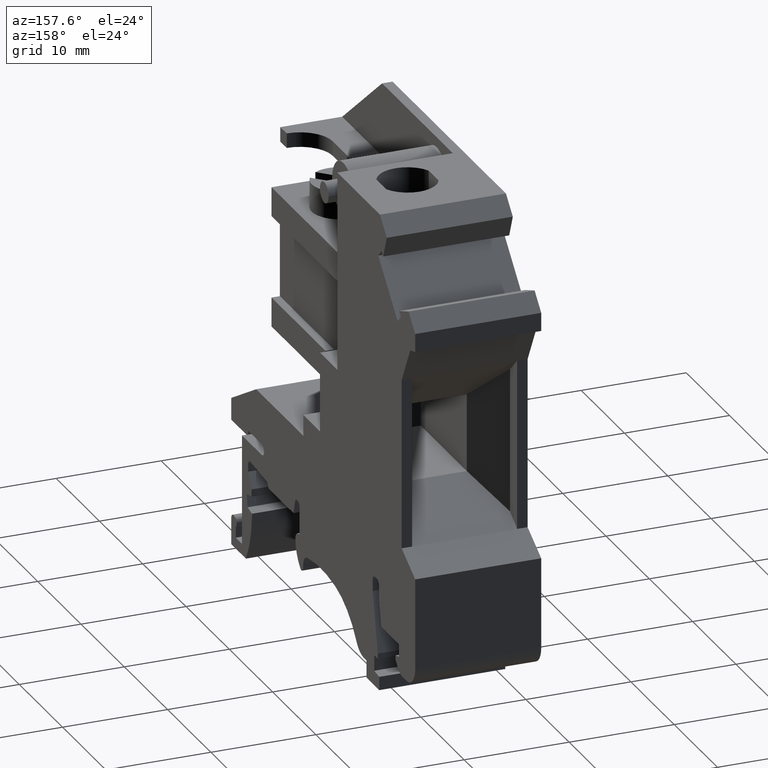
[diagram: clean part render]
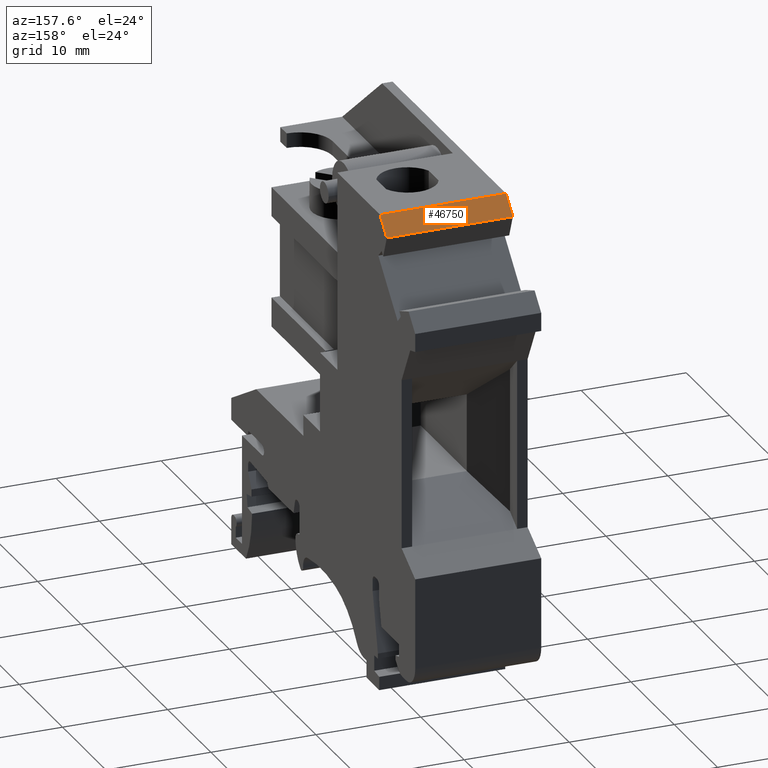
[diagram: same view with one face highlighted and labeled with its STEP entity id]
A machine part, auxiliary view. The second image highlights one B-rep face of the part: STEP entity #46750.
In plain terms, the highlighted planar face has unit normal (0, 0.7071, 0.7071).
Its self-contained STEP definition (entity closure, byte-faithful):
#29540=CARTESIAN_POINT('',(-131.049315429515,295.437846858691,
7.21644966006352E-16));
#29550=VERTEX_POINT('',#29540);
#29580=CARTESIAN_POINT('',(77.5635819667818,86.824949462381,
7.21644966006352E-16));
#29590=DIRECTION('',(0.707106781186526,-0.707106781186569,0.));
#29600=VECTOR('',#29590,1.);
#29610=LINE('',#29580,#29600);
#29620=CARTESIAN_POINT('',(-129.466371176741,293.854902605917,
7.21644966006352E-16));
#29630=VERTEX_POINT('',#29620);
#29640=EDGE_CURVE('',#29550,#29630,#29610,.T.);
#46280=CARTESIAN_POINT('',(-129.466371176741,293.854902605916,-12.5));
#46290=DIRECTION('',(0.,0.,-1.));
#46300=VECTOR('',#46290,1.);
#46310=LINE('',#46280,#46300);
#46320=CARTESIAN_POINT('',(-129.466371176741,293.854902605917,-12.));
#46330=VERTEX_POINT('',#46320);
#46340=EDGE_CURVE('',#29630,#46330,#46310,.T.);
#46520=CARTESIAN_POINT('',(-130.902868820108,295.291400249284,-12.5));
#46530=DIRECTION('',(0.707106781186569,0.707106781186526,0.));
#46540=DIRECTION('',(0.707106781186526,-0.707106781186569,0.));
#46550=AXIS2_PLACEMENT_3D('',#46520,#46530,#46540);
#46560=PLANE('',#46550);
#46570=ORIENTED_EDGE('',*,*,#46340,.T.);
#46580=ORIENTED_EDGE('',*,*,#29640,.T.);
#46590=CARTESIAN_POINT('',(-131.049315429515,295.437846858691,-12.5));
#46600=DIRECTION('',(0.,0.,-1.));
#46610=VECTOR('',#46600,1.);
#46620=LINE('',#46590,#46610);
#46630=CARTESIAN_POINT('',(-131.049315429515,295.437846858691,-12.));
#46640=VERTEX_POINT('',#46630);
#46650=EDGE_CURVE('',#29550,#46640,#46620,.T.);
#46660=ORIENTED_EDGE('',*,*,#46650,.F.);
#46670=CARTESIAN_POINT('',(77.5635819667818,86.824949462381,-12.));
#46680=DIRECTION('',(-0.707106781186526,0.707106781186569,0.));
#46690=VECTOR('',#46680,1.);
#46700=LINE('',#46670,#46690);
#46710=EDGE_CURVE('',#46330,#46640,#46700,.T.);
#46720=ORIENTED_EDGE('',*,*,#46710,.T.);
#46730=EDGE_LOOP('',(#46720,#46660,#46580,#46570));
#46740=FACE_OUTER_BOUND('',#46730,.T.);
#46750=ADVANCED_FACE('',(#46740),#46560,.T.);